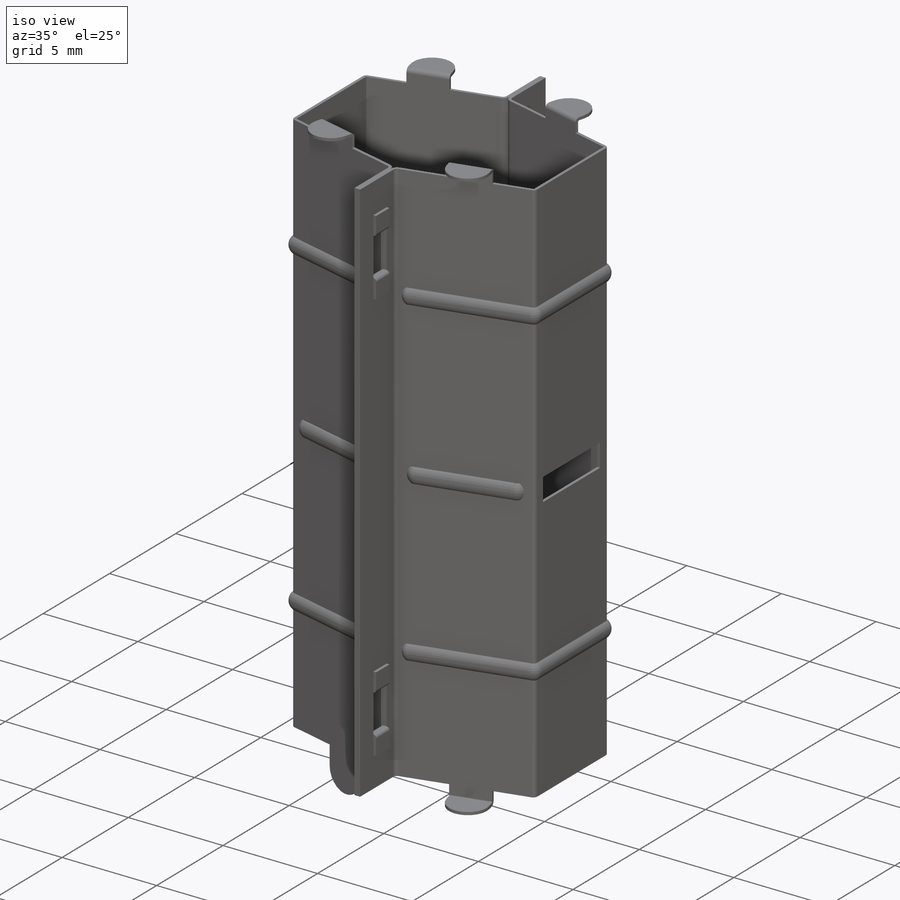
[diagram: iso view]
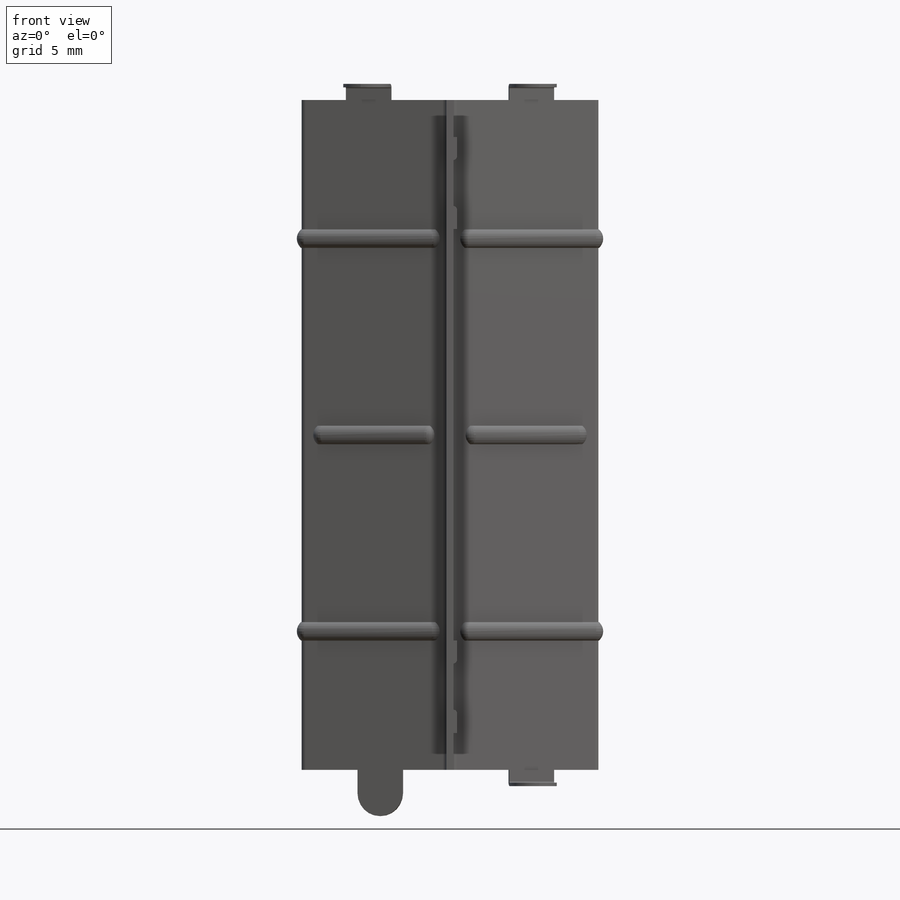
[diagram: front view]
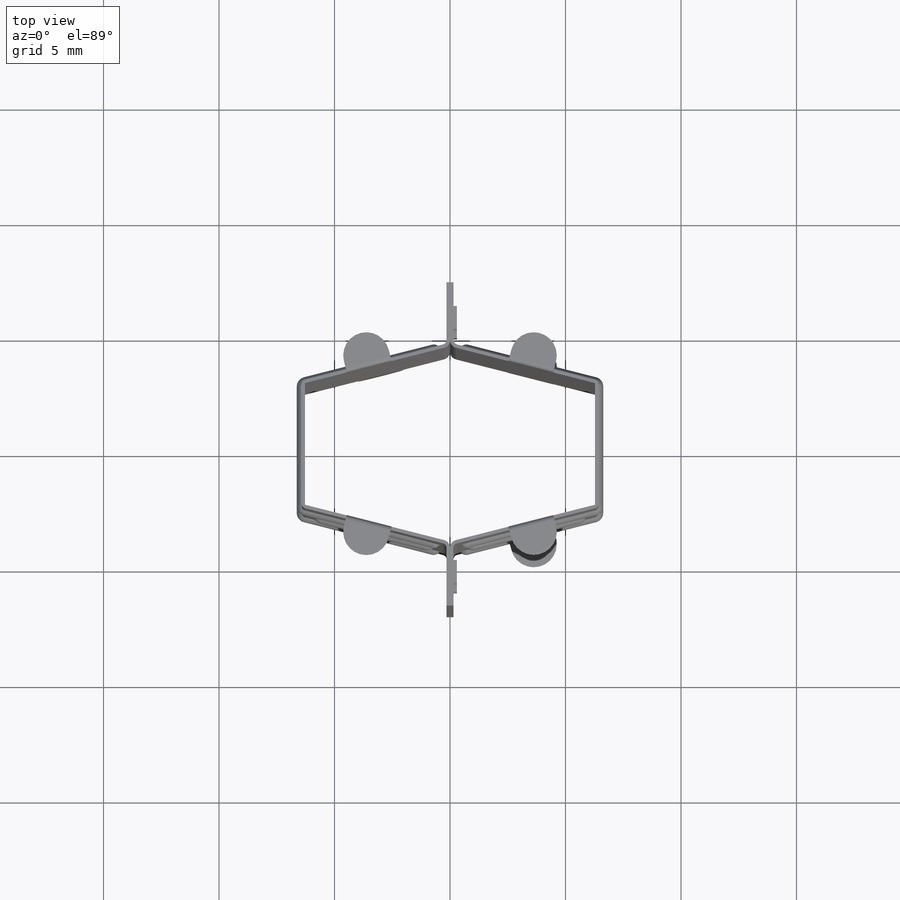
[diagram: top view]
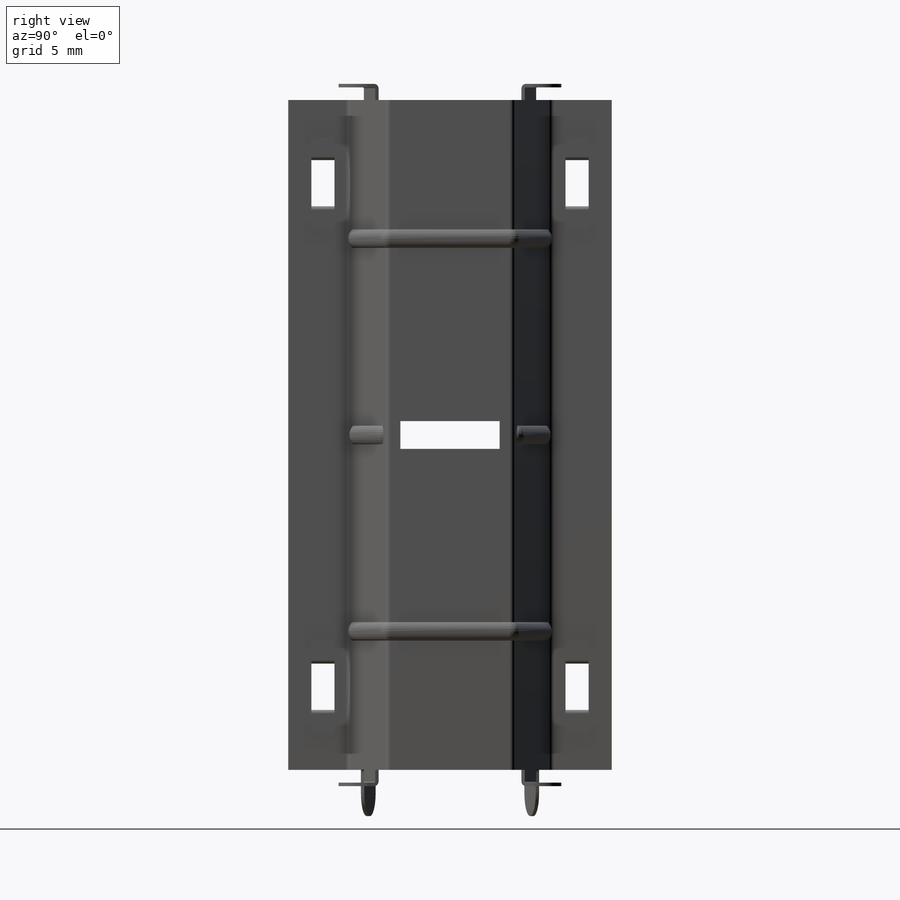
[diagram: right view]
SOLIDWORKS PART (.sldprt)
format: sldprt  version: not decoded by parser v0  size: 758,272 bytes
history: native  units: mm
features: sketch x12, mirror x10, fillet x4, extrude x3, sweep x3, cut_extrude x3, plane x2, material x1 (+12 scaffold rows collapsed)
feature tree (50):
  scaffold x12  (default folders/planes/origin — collapsed)
  material  "材质 <未指定>"
  plane  "Plane1"  Offset=6mm
  plane  "Plane2"  Offset=14.5mm
  sketch  "Sketch2"  dims[D7=0.2mm D1=0.15mm D2=14.0mm D3=7.0mm D4=6.425mm D5=5.5mm D6=2.75mm D8=9.0mm]
  extrude  "Extrude1"  Depth=29mm
  sketch  "Sketch3"  dims[c1.D2=0.4mm c1.D6=0.3mm c1.D1=~12.723571mm c2.D1=~179.894017deg c3.D1=0.5mm c3.D3=0.2mm c3.D4=0.2mm c3.D5=0.2mm c4.D1=0.7mm]
  sketch  "Sketch4"  dims[c1.D2=0.5mm c1.D1=0.8mm c1.D3=0.2mm c1.D4=0.5mm c2.D3=0.05mm]
  sweep  "Sweep4"
  sketch  "Sketch6"  dims[c1.D1=0.4mm c1.D2=~10.737188mm c2.D2=~179.786689deg c3.D2=0.2mm c3.D3=1.0mm c3.D4=5.5mm]
  sketch  "Sketch7"  dims[D1=0.5mm D2=0.05mm D3=0.8mm D4=0.5mm]
  sweep  "Sweep5"
  mirror  "Mirror1"
  mirror  "Mirror2"
  sketch  "Sketch8"  dims[c1.D1=~12.565651mm c2.D1=~7.285777deg c3.D1=~12.443568mm c4.D1=~179.775917deg c5.D1=0.15mm c5.D2=0.15mm c5.D3=0.15mm]
  cut_extrude  "Extrude5"  [1 undecoded]
  fillet  "Fillet1"  Radius=0.35mm
  mirror  "Mirror3"
  sketch  "Sketch9"  dims[D1=4.3mm D2=1.2mm D3=0.6mm D4=2.15mm]
  cut_extrude  "Extrude6"  [1 undecoded]
  sketch  "Sketch10"  dims[D1=2.0mm D2=1.0mm D3=12.0mm D4=6.0mm D5=11.9mm D6=23.8mm]
  cut_extrude  "Extrude7"  [1 undecoded]
  sketch  "Sketch11"  dims[D1=1.0mm]
  extrude  "Extrude8"  Depth=0.15mm
  fillet  "Fillet2"  Radius=0.15mm
  sketch  "3DSketch1"  dims[D1=0.2mm D2=3.5mm D3=0.7mm D4=1.5mm]
  sketch  "Sketch12"  dims[D1=2.0mm D2=1.0mm]
  sweep  "Sweep6"
  fillet  "Fillet3"  Radius=1mm
  mirror  "Mirror4"
  mirror  "Mirror5"
  mirror  "Mirror6"
  mirror  "Mirror7"
  mirror  "Mirror8"
  mirror  "Mirror9"
  sketch  "Sketch13"  dims[c1.D1=1.0mm c1.D2=2.0mm c2.D1=3.0mm c2.D2=1.0mm c2.D3=2.0mm]
  extrude  "Extrude9"  Depth=2mm
  fillet  "Fillet4"  Radius=1mm
  mirror  "Mirror10"
decode coverage: 19 of 35 modeling features carry decoded parameters
note: ~ marks probable driven/reference dimensions
note: 3 parameter values undecoded
summary: no parameter record found for 3 features
note: suppression state not decoded; provenance and decode notes live in map.json
